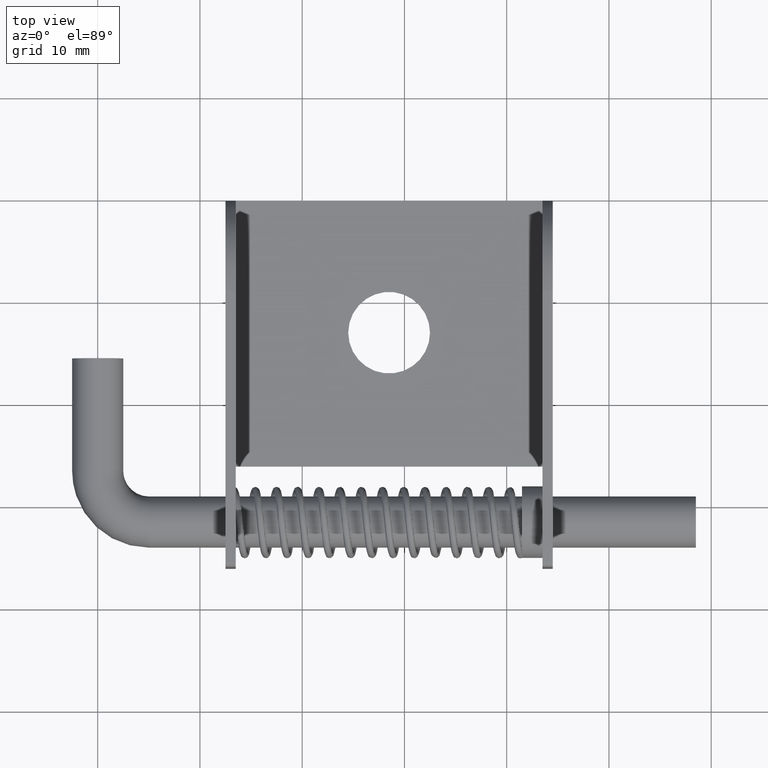
[diagram: clean part render]
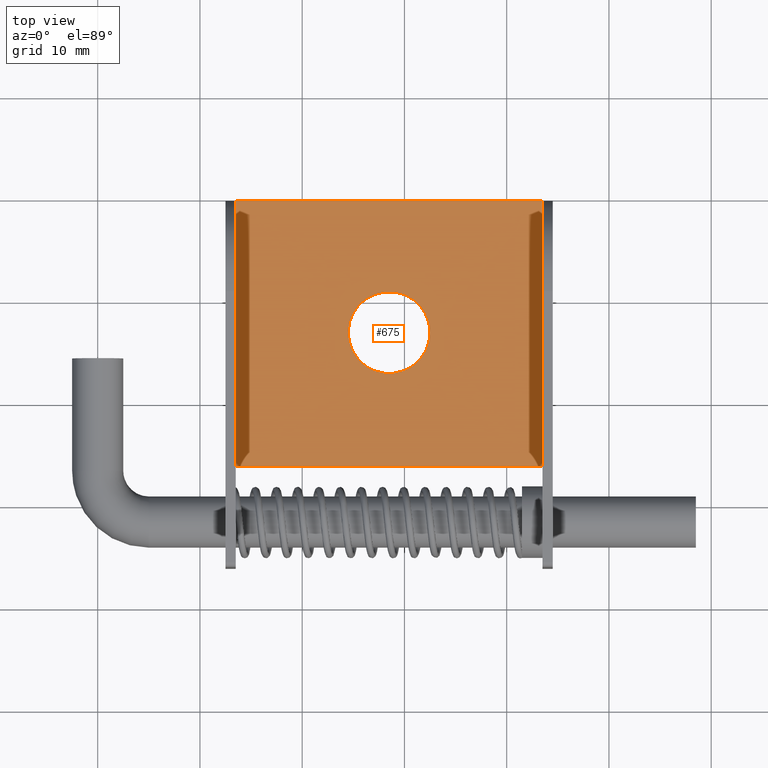
[diagram: same view with one face highlighted and labeled with its STEP entity id]
A machine part, top view. The second image highlights one B-rep face of the part: STEP entity #675.
In plain terms, the highlighted planar face has unit normal (0, 0, 1).
Its self-contained STEP definition (entity closure, byte-faithful):
#55=LINE('',#1098,#101);
#61=LINE('',#1110,#107);
#72=LINE('',#1155,#118);
#76=LINE('',#1164,#122);
#101=VECTOR('',#885,30.);
#107=VECTOR('',#895,30.);
#118=VECTOR('',#936,26.);
#122=VECTOR('',#948,26.);
#169=FACE_BOUND('',#263,.T.);
#206=FACE_OUTER_BOUND('',#262,.T.);
#262=EDGE_LOOP('',(#602,#603,#604,#605));
#263=EDGE_LOOP('',(#606));
#277=CIRCLE('',#704,4.);
#311=VERTEX_POINT('',#1002);
#344=VERTEX_POINT('',#1095);
#345=VERTEX_POINT('',#1097);
#348=VERTEX_POINT('',#1107);
#349=VERTEX_POINT('',#1109);
#371=EDGE_CURVE('',#311,#311,#277,.T.);
#413=EDGE_CURVE('',#345,#344,#55,.T.);
#419=EDGE_CURVE('',#349,#348,#61,.T.);
#437=EDGE_CURVE('',#348,#345,#72,.T.);
#442=EDGE_CURVE('',#344,#349,#76,.T.);
#602=ORIENTED_EDGE('',*,*,#413,.T.);
#603=ORIENTED_EDGE('',*,*,#442,.T.);
#604=ORIENTED_EDGE('',*,*,#419,.T.);
#605=ORIENTED_EDGE('',*,*,#437,.T.);
#606=ORIENTED_EDGE('',*,*,#371,.T.);
#635=PLANE('',#755);
#675=ADVANCED_FACE('',(#206,#169),#635,.T.);
#704=AXIS2_PLACEMENT_3D('',#1003,#806,#807);
#755=AXIS2_PLACEMENT_3D('',#1168,#954,#955);
#806=DIRECTION('center_axis',(0.,0.,-1.));
#807=DIRECTION('ref_axis',(-1.,0.,0.));
#885=DIRECTION('',(-1.,1.12462729995322E-19,0.));
#895=DIRECTION('',(1.,0.,0.));
#936=DIRECTION('',(0.,1.,0.));
#948=DIRECTION('',(0.,-1.,0.));
#954=DIRECTION('center_axis',(0.,0.,1.));
#955=DIRECTION('ref_axis',(1.,0.,0.));
#1002=CARTESIAN_POINT('',(4.,-12.9,1.));
#1003=CARTESIAN_POINT('Origin',(0.,-12.9,1.));
#1095=CARTESIAN_POINT('',(-15.,1.79940367992515E-18,1.));
#1097=CARTESIAN_POINT('',(15.,1.79940367992515E-18,1.));
#1098=CARTESIAN_POINT('',(-16.,1.79940367992515E-18,1.));
#1107=CARTESIAN_POINT('',(15.,-26.,1.));
#1109=CARTESIAN_POINT('',(-15.,-26.,1.));
#1110=CARTESIAN_POINT('',(16.,-26.,1.));
#1155=CARTESIAN_POINT('',(15.,1.79940367992515E-18,1.));
#1164=CARTESIAN_POINT('',(-15.,1.79940367992515E-18,1.));
#1168=CARTESIAN_POINT('Origin',(0.,-13.,1.));